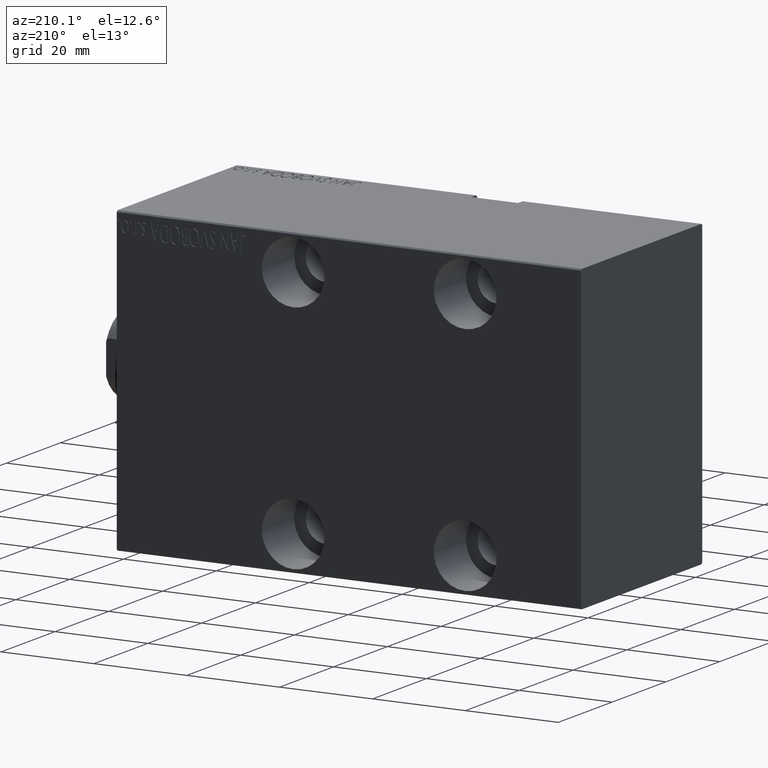
[diagram: clean part render]
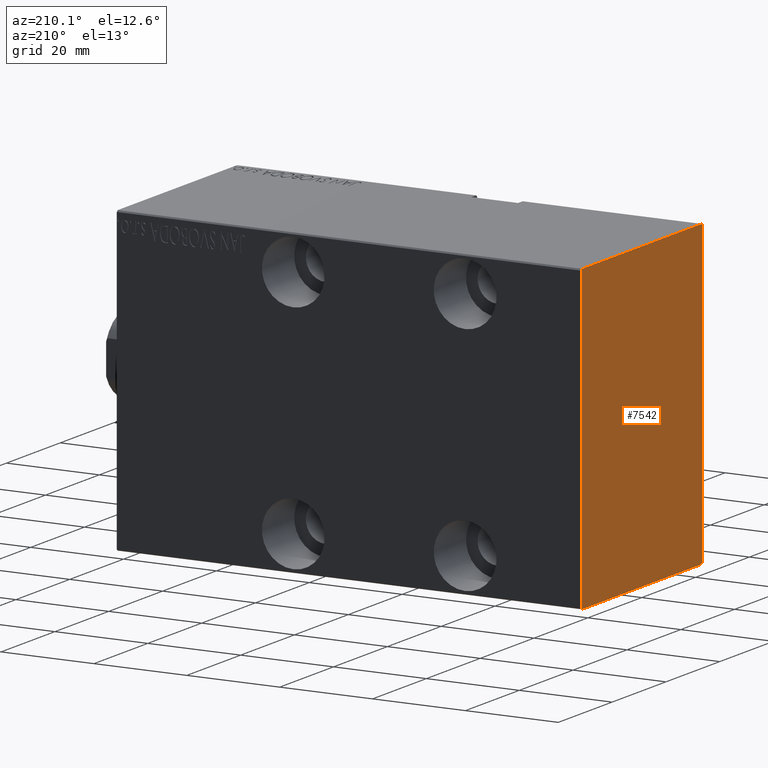
[diagram: same view with one face highlighted and labeled with its STEP entity id]
A machine part, auxiliary view. The second image highlights one B-rep face of the part: STEP entity #7542.
In plain terms, the highlighted planar face has unit normal (-1, 0, 0).
Its self-contained STEP definition (entity closure, byte-faithful):
#620 = DIRECTION ( 'NONE',  ( -0.000000000000000000, 0.7071067811865474617, -0.7071067811865474617 ) ) ;
#1307 = ORIENTED_EDGE ( 'NONE', *, *, #6893, .T. ) ;
#1584 = FACE_OUTER_BOUND ( 'NONE', #38882, .T. ) ;
#2503 = VECTOR ( 'NONE', #35454, 1000.000000000000000 ) ;
#2565 = VECTOR ( 'NONE', #34348, 1000.000000000000114 ) ;
#3840 = VERTEX_POINT ( 'NONE', #16878 ) ;
#4436 = CARTESIAN_POINT ( 'NONE',  ( 100.0000000000000000, 22.50000000000000355, -32.19999999999998153 ) ) ;
#5579 = EDGE_CURVE ( 'NONE', #12305, #26000, #34592, .T. ) ;
#6063 = AXIS2_PLACEMENT_3D ( 'NONE', #8351, #21662, #9420 ) ;
#6251 = LINE ( 'NONE', #26327, #24161 ) ;
#6701 = ORIENTED_EDGE ( 'NONE', *, *, #12640, .T. ) ;
#6893 = EDGE_CURVE ( 'NONE', #39688, #12246, #6251, .T. ) ;
#6912 = CARTESIAN_POINT ( 'NONE',  ( 100.0000000000000000, 27.35000000000025011, 27.34999999999961418 ) ) ;
#7338 = LINE ( 'NONE', #6912, #19338 ) ;
#7424 = CARTESIAN_POINT ( 'NONE',  ( 100.0000000000000000, -22.49999999999999645, 32.50000000000000000 ) ) ;
#7542 = ADVANCED_FACE ( 'NONE', ( #1584 ), #14903, .T. ) ;
#8351 = CARTESIAN_POINT ( 'NONE',  ( 100.0000000000000000, 0.000000000000000000, 0.000000000000000000 ) ) ;
#9420 = DIRECTION ( 'NONE',  ( 0.000000000000000000, 0.000000000000000000, -1.000000000000000000 ) ) ;
#9911 = VECTOR ( 'NONE', #28901, 1000.000000000000000 ) ;
#10256 = ORIENTED_EDGE ( 'NONE', *, *, #18516, .T. ) ;
#10871 = LINE ( 'NONE', #17859, #40898 ) ;
#11244 = CARTESIAN_POINT ( 'NONE',  ( 100.0000000000000000, 27.34999999999999076, -27.34999999999999076 ) ) ;
#12246 = VERTEX_POINT ( 'NONE', #27561 ) ;
#12305 = VERTEX_POINT ( 'NONE', #4436 ) ;
#12640 = EDGE_CURVE ( 'NONE', #41462, #15024, #10871, .T. ) ;
#12792 = DIRECTION ( 'NONE',  ( 0.000000000000000000, -1.000000000000000000, -1.541976423090495633E-16 ) ) ;
#14123 = VECTOR ( 'NONE', #34094, 1000.000000000000000 ) ;
#14903 = PLANE ( 'NONE',  #6063 ) ;
#14922 = CARTESIAN_POINT ( 'NONE',  ( 100.0000000000000000, 22.50000000000000355, -32.50000000000000000 ) ) ;
#15024 = VERTEX_POINT ( 'NONE', #38159 ) ;
#15499 = ORIENTED_EDGE ( 'NONE', *, *, #15593, .T. ) ;
#15591 = LINE ( 'NONE', #28258, #9911 ) ;
#15593 = EDGE_CURVE ( 'NONE', #12246, #20688, #30836, .T. ) ;
#16878 = CARTESIAN_POINT ( 'NONE',  ( 100.0000000000000000, 22.19999999999996732, -32.50000000000000000 ) ) ;
#17848 = ORIENTED_EDGE ( 'NONE', *, *, #20635, .T. ) ;
#17859 = CARTESIAN_POINT ( 'NONE',  ( 100.0000000000000000, -27.34999999999998721, -27.34999999999998721 ) ) ;
#18516 = EDGE_CURVE ( 'NONE', #3840, #12305, #38119, .T. ) ;
#19338 = VECTOR ( 'NONE', #20658, 1000.000000000000114 ) ;
#20635 = EDGE_CURVE ( 'NONE', #26000, #39688, #7338, .T. ) ;
#20658 = DIRECTION ( 'NONE',  ( -0.000000000000000000, -0.7071067811865392461, 0.7071067811865556774 ) ) ;
#20688 = VERTEX_POINT ( 'NONE', #31789 ) ;
#20867 = ORIENTED_EDGE ( 'NONE', *, *, #36465, .T. ) ;
#21451 = VECTOR ( 'NONE', #24560, 1000.000000000000114 ) ;
#21662 = DIRECTION ( 'NONE',  ( 1.000000000000000000, 0.000000000000000000, 0.000000000000000000 ) ) ;
#24011 = LINE ( 'NONE', #7424, #14123 ) ;
#24161 = VECTOR ( 'NONE', #12792, 1000.000000000000000 ) ;
#24560 = DIRECTION ( 'NONE',  ( -0.000000000000000000, 0.7071067811865474617, 0.7071067811865474617 ) ) ;
#26000 = VERTEX_POINT ( 'NONE', #30795 ) ;
#26327 = CARTESIAN_POINT ( 'NONE',  ( 100.0000000000000000, 22.49999999999999645, 32.50000000000000711 ) ) ;
#27561 = CARTESIAN_POINT ( 'NONE',  ( 100.0000000000000000, -22.19999999999996021, 32.50000000000000000 ) ) ;
#28258 = CARTESIAN_POINT ( 'NONE',  ( 100.0000000000000000, -22.49999999999999645, -32.50000000000000000 ) ) ;
#28901 = DIRECTION ( 'NONE',  ( 0.000000000000000000, 1.000000000000000000, 0.000000000000000000 ) ) ;
#30795 = CARTESIAN_POINT ( 'NONE',  ( 100.0000000000000000, 22.49999999999999645, 32.19999999999998153 ) ) ;
#30836 = LINE ( 'NONE', #37627, #2565 ) ;
#31789 = CARTESIAN_POINT ( 'NONE',  ( 100.0000000000000000, -22.49999999999999645, 32.19999999999998153 ) ) ;
#32350 = CARTESIAN_POINT ( 'NONE',  ( 100.0000000000000000, 22.19999999999997442, 32.50000000000000711 ) ) ;
#32486 = ORIENTED_EDGE ( 'NONE', *, *, #39294, .T. ) ;
#32528 = ORIENTED_EDGE ( 'NONE', *, *, #5579, .T. ) ;
#34094 = DIRECTION ( 'NONE',  ( 0.000000000000000000, 0.000000000000000000, -1.000000000000000000 ) ) ;
#34348 = DIRECTION ( 'NONE',  ( 0.000000000000000000, -0.7071067811865474617, -0.7071067811865474617 ) ) ;
#34592 = LINE ( 'NONE', #14922, #2503 ) ;
#35454 = DIRECTION ( 'NONE',  ( 0.000000000000000000, -1.067522139062650425E-16, 1.000000000000000000 ) ) ;
#36465 = EDGE_CURVE ( 'NONE', #20688, #41462, #24011, .T. ) ;
#37627 = CARTESIAN_POINT ( 'NONE',  ( 100.0000000000000000, -27.34999999999998721, 27.34999999999998721 ) ) ;
#37717 = CARTESIAN_POINT ( 'NONE',  ( 100.0000000000000000, -22.49999999999999645, -32.19999999999998153 ) ) ;
#38119 = LINE ( 'NONE', #11244, #21451 ) ;
#38159 = CARTESIAN_POINT ( 'NONE',  ( 100.0000000000000000, -22.19999999999997442, -32.50000000000000000 ) ) ;
#38882 = EDGE_LOOP ( 'NONE', ( #32486, #10256, #32528, #17848, #1307, #15499, #20867, #6701 ) ) ;
#39294 = EDGE_CURVE ( 'NONE', #15024, #3840, #15591, .T. ) ;
#39688 = VERTEX_POINT ( 'NONE', #32350 ) ;
#40898 = VECTOR ( 'NONE', #620, 1000.000000000000114 ) ;
#41462 = VERTEX_POINT ( 'NONE', #37717 ) ;